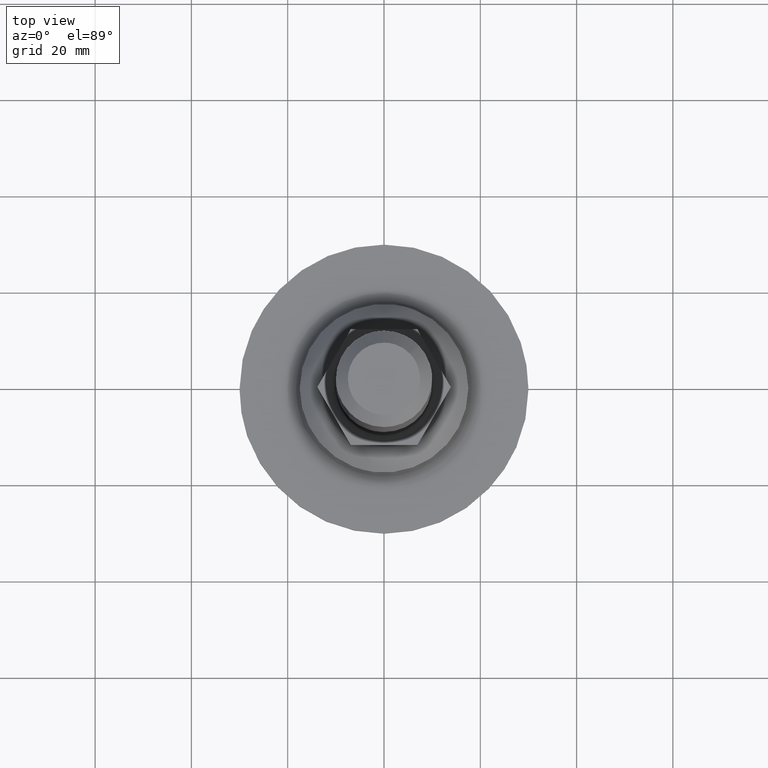
[diagram: clean part render]
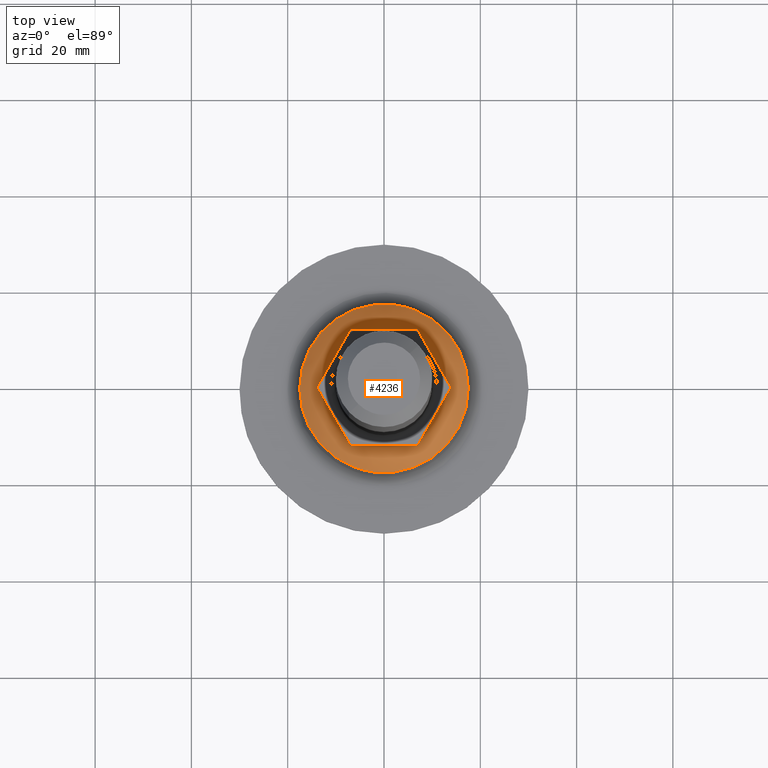
[diagram: same view with one face highlighted and labeled with its STEP entity id]
A machine part, top view. The second image highlights one B-rep face of the part: STEP entity #4236.
In plain terms, the highlighted face is a freeform B-spline surface patch.
Its self-contained STEP definition (entity closure, byte-faithful):
#3820=CARTESIAN_POINT('',(6.442179672005633,16.271088503035049,10.499999999995280));
#3821=VERTEX_POINT('',#3820);
#3829=CARTESIAN_POINT('',(17.500000000000000,0.0,10.500000000000000));
#3830=VERTEX_POINT('',#3829);
#3831=CARTESIAN_POINT('',(6.442179672005633,16.271088503035049,10.499999999995280));
#3832=CARTESIAN_POINT('',(7.403340600920035,15.890662669724080,10.499999999995500));
#3833=CARTESIAN_POINT('',(8.818583929590631,15.179371020373710,10.499999999995790));
#3834=CARTESIAN_POINT('',(10.795339610360010,13.824615804324770,10.499999999996369));
#3835=CARTESIAN_POINT('',(12.356955415463240,12.462107385787601,10.499999999996771));
#3836=CARTESIAN_POINT('',(13.871246741207610,10.745295327909529,10.499999999997460));
#3837=CARTESIAN_POINT('',(15.342359969616160,8.580878732907170,10.499999999997900));
#3838=CARTESIAN_POINT('',(16.582848970730520,5.902173057722604,10.499999999998820));
#3839=CARTESIAN_POINT('',(17.344427515629040,2.883468634726826,10.499999999999231));
#3840=CARTESIAN_POINT('',(17.500045504905131,0.924881292350239,10.499999999999980));
#3841=CARTESIAN_POINT('',(17.500000000000000,0.0,10.500000000000000));
#3842=B_SPLINE_CURVE_WITH_KNOTS('',3,(#3831,#3832,#3833,#3834,#3835,#3836,#3837,#3838,#3839,#3840,#3841),.UNSPECIFIED.,.F.,.U.,(4,1,1,1,1,1,1,1,4),(0.000000038280557,3.101106259952843,4.733264809486622,7.181511941189427,9.303322801199590,11.588342436059460,15.015880778531979,18.117010735558889,20.891666863327490),.UNSPECIFIED.);
#3843=EDGE_CURVE('',#3821,#3830,#3842,.T.);
#3845=CARTESIAN_POINT('',(-6.442179672005638,-16.271088503035049,10.499999999995280));
#3846=VERTEX_POINT('',#3845);
#3847=CARTESIAN_POINT('',(17.500000000000000,0.0,10.500000000000000));
#3848=CARTESIAN_POINT('',(17.500307947142051,-1.375903476028547,10.499999999999879));
#3849=CARTESIAN_POINT('',(17.247405879530401,-3.506131488879144,10.499999999999670));
#3850=CARTESIAN_POINT('',(16.365138271542769,-6.352440386359571,10.499999999999231));
#3851=CARTESIAN_POINT('',(15.139903573041650,-8.972631477154446,10.499999999998860));
#3852=CARTESIAN_POINT('',(13.427281935533751,-11.371061642094229,10.499999999998410));
#3853=CARTESIAN_POINT('',(11.578085927556570,-13.170632252581290,10.499999999997980));
#3854=CARTESIAN_POINT('',(9.685467653455644,-14.644443321121770,10.499999999997661));
#3855=CARTESIAN_POINT('',(7.640315626724403,-15.828002672030690,10.499999999997179));
#3856=CARTESIAN_POINT('',(5.355084969956888,-16.700689824730102,10.499999999996840));
#3857=CARTESIAN_POINT('',(3.245713853019762,-17.240931461996350,10.499999999996490));
#3858=CARTESIAN_POINT('',(1.348143123613566,-17.487035020237830,10.499999999996239));
#3859=CARTESIAN_POINT('',(-1.094822757801169,-17.523398709589490,10.499999999995740));
#3860=CARTESIAN_POINT('',(-3.617174523103111,-17.213843958939119,10.499999999996019));
#3861=CARTESIAN_POINT('',(-5.575601866158744,-16.614230890256970,10.499999999994991));
#3862=CARTESIAN_POINT('',(-6.442179672005638,-16.271088503035049,10.499999999995280));
#3863=B_SPLINE_CURVE_WITH_KNOTS('',3,(#3847,#3848,#3849,#3850,#3851,#3852,#3853,#3854,#3855,#3856,#3857,#3858,#3859,#3860,#3861,#3862),.UNSPECIFIED.,.F.,.U.,(4,1,1,1,1,1,1,1,1,1,1,1,1,4),(0.000000117842383,4.127617327099145,6.391188767581379,8.921043033117655,12.782419899867071,15.179095145841940,16.643762757267631,19.972436276199218,22.236016812229131,23.966974057011299,26.496823121112911,27.961487889510980,31.290219347469019,34.086362508616652),.UNSPECIFIED.);
#3864=EDGE_CURVE('',#3830,#3846,#3863,.T.);
#3911=CARTESIAN_POINT('',(-17.500000000000121,0.0,10.500000000000000));
#3912=VERTEX_POINT('',#3911);
#3913=CARTESIAN_POINT('',(-6.442179672005638,-16.271088503035049,10.499999999995280));
#3914=CARTESIAN_POINT('',(-7.302142531648174,-15.930676719711570,10.499999999995451));
#3915=CARTESIAN_POINT('',(-8.722892922352987,-15.233232756763650,10.499999999995810));
#3916=CARTESIAN_POINT('',(-10.713144654747071,-13.896331371957119,10.499999999996300));
#3917=CARTESIAN_POINT('',(-12.356960617004820,-12.462111873528221,10.499999999996881));
#3918=CARTESIAN_POINT('',(-13.799137938850970,-10.827052910982189,10.499999999997240));
#3919=CARTESIAN_POINT('',(-15.041027867390181,-9.035845109853568,10.499999999998041));
#3920=CARTESIAN_POINT('',(-16.225534574014532,-6.762620480916014,10.499999999998360));
#3921=CARTESIAN_POINT('',(-17.230859880326289,-3.699481103726158,10.499999999999281));
#3922=CARTESIAN_POINT('',(-17.500210962830248,-1.305731210956885,10.499999999999780));
#3923=CARTESIAN_POINT('',(-17.500000000000121,0.0,10.500000000000000));
#3924=B_SPLINE_CURVE_WITH_KNOTS('',3,(#3913,#3914,#3915,#3916,#3917,#3918,#3919,#3920,#3921,#3922,#3923),.UNSPECIFIED.,.F.,.U.,(4,1,1,1,1,1,1,1,4),(0.000000038281140,2.774658324520242,4.733264809486647,7.181511941189328,9.303322801199379,11.261888170898230,13.710152745459700,16.974487690532310,20.891666863327540),.UNSPECIFIED.);
#3925=EDGE_CURVE('',#3846,#3912,#3924,.T.);
#3927=CARTESIAN_POINT('',(-17.500000000000121,0.0,10.500000000000000));
#3928=CARTESIAN_POINT('',(-17.500253706077299,1.287132451636313,10.499999999999879));
#3929=CARTESIAN_POINT('',(-17.234351201041910,3.683712490399447,10.499999999999631));
#3930=CARTESIAN_POINT('',(-16.306781053282069,6.523187715788938,10.499999999999320));
#3931=CARTESIAN_POINT('',(-15.201176844254769,8.752610587256688,10.499999999998820));
#3932=CARTESIAN_POINT('',(-13.742463009946720,10.988049620418320,10.499999999998449));
#3933=CARTESIAN_POINT('',(-11.779804743356690,13.065298604976450,10.499999999998220));
#3934=CARTESIAN_POINT('',(-9.530063628122216,14.735636268801329,10.499999999997341));
#3935=CARTESIAN_POINT('',(-7.239210173931038,16.015404528896379,10.499999999997280));
#3936=CARTESIAN_POINT('',(-4.390926776632012,17.054002342035520,10.499999999996749));
#3937=CARTESIAN_POINT('',(-1.262501837318637,17.544730025683091,10.499999999995710));
#3938=CARTESIAN_POINT('',(1.407720166144801,17.492804544915000,10.499999999996060));
#3939=CARTESIAN_POINT('',(3.913185694674737,17.117383738882761,10.499999999995630));
#3940=CARTESIAN_POINT('',(5.493092980304871,16.646961691801611,10.499999999995250));
#3941=CARTESIAN_POINT('',(6.442179672005633,16.271088503035049,10.499999999995280));
#3942=B_SPLINE_CURVE_WITH_KNOTS('',3,(#3927,#3928,#3929,#3930,#3931,#3932,#3933,#3934,#3935,#3936,#3937,#3938,#3939,#3940,#3941),.UNSPECIFIED.,.F.,.U.,(4,1,1,1,1,1,1,1,1,1,1,1,4),(0.000000117844927,3.861336404624698,7.190092751078598,8.921043033117812,11.317741537305791,15.179095145840680,17.442603335811199,19.706167372723819,23.034913587827951,26.496823121112438,29.159835323066549,31.023956213747891,34.086362508616709),.UNSPECIFIED.);
#3943=EDGE_CURVE('',#3912,#3821,#3942,.T.);
#4126=CARTESIAN_POINT('',(-14.711978558082301,-14.710840725586944,2.671193121033110));
#4127=CARTESIAN_POINT('',(-9.205010876790453,-18.408597912397504,9.053365477405619));
#4128=CARTESIAN_POINT('',(9.205010876792311,-18.408597912397504,9.053365477404009));
#4129=CARTESIAN_POINT('',(14.711978558083036,-14.710840725586941,2.671193121030524));
#4130=CARTESIAN_POINT('',(-18.409306007854749,-9.203941111014007,9.052130226126925));
#4131=CARTESIAN_POINT('',(-12.295050359180880,-12.294099453242760,19.719095173922081));
#4132=CARTESIAN_POINT('',(12.295050359184611,-12.294099453242760,19.719095173919928));
#4133=CARTESIAN_POINT('',(18.409306007856593,-9.203941111014007,9.052130226123690));
#4134=CARTESIAN_POINT('',(-18.409306007854749,9.203931775035256,9.052130226129425));
#4135=CARTESIAN_POINT('',(-12.295050359180880,12.294086982773020,19.719095173925421));
#4136=CARTESIAN_POINT('',(12.295050359184611,12.294086982773020,19.719095173923261));
#4137=CARTESIAN_POINT('',(18.409306007856593,9.203931775035256,9.052130226126190));
#4138=CARTESIAN_POINT('',(-14.711984552367801,14.710831797527113,2.671203466119944));
#4139=CARTESIAN_POINT('',(-9.205015570042834,18.408588625486196,9.053381676867483));
#4140=CARTESIAN_POINT('',(9.205015570044685,18.408588625486196,9.053381676865874));
#4141=CARTESIAN_POINT('',(14.711984552368536,14.710831797527113,2.671203466117356));
#4149=(BOUNDED_SURFACE()B_SPLINE_SURFACE(2,2,((#4126,#4130,#4134,#4138),(#4127,#4131,#4135,#4139),(#4128,#4132,#4136,#4140),(#4129,#4133,#4137,#4141)),.UNSPECIFIED.,.F.,.F.,.U.)B_SPLINE_SURFACE_WITH_KNOTS((3,1,3),(3,1,3),(0.0,21.055722473652999,42.111444947306012),(0.0,21.054094012520551,42.108166668916418),.UNSPECIFIED.)GEOMETRIC_REPRESENTATION_ITEM()RATIONAL_B_SPLINE_SURFACE(((1.671433969352534,1.335742950216175,1.335742950216175,1.671433288339557),(1.335691019136359,1.0,1.0,1.335690338123382),(1.335691019136359,1.0,1.0,1.335690338123382),(1.671433969352534,1.335742950216175,1.335742950216175,1.671433288339557)))REPRESENTATION_ITEM('')SURFACE());
#4150=ORIENTED_EDGE('',*,*,#3925,.F.);
#4151=ORIENTED_EDGE('',*,*,#3864,.F.);
#4152=ORIENTED_EDGE('',*,*,#3843,.F.);
#4153=ORIENTED_EDGE('',*,*,#3943,.F.);
#4154=EDGE_LOOP('',(#4150,#4151,#4152,#4153));
#4155=FACE_OUTER_BOUND('',#4154,.T.);
#4156=CARTESIAN_POINT('',(-6.928203230275360,12.0,14.570158679988200));
#4157=VERTEX_POINT('',#4156);
#4158=CARTESIAN_POINT('',(6.928203230275470,12.0,14.570158679988140));
#4159=VERTEX_POINT('',#4158);
#4160=CARTESIAN_POINT('',(-6.928203230275360,12.0,14.570158679988200));
#4161=CARTESIAN_POINT('',(-5.974302665926844,12.000000000000050,14.981513434112451));
#4162=CARTESIAN_POINT('',(-3.957580790559049,11.999999999999940,15.645228249657650));
#4163=CARTESIAN_POINT('',(-1.152405796536287,12.000000000000030,16.031245960971191));
#4164=CARTESIAN_POINT('',(1.709229793151665,12.0,15.985759709648461));
#4165=CARTESIAN_POINT('',(4.317066182687054,12.000000000000030,15.541988684993310));
#4166=CARTESIAN_POINT('',(6.144627270901140,12.0,14.908005653675380));
#4167=CARTESIAN_POINT('',(6.928203230275470,12.0,14.570158679988140));
#4168=B_SPLINE_CURVE_WITH_KNOTS('',3,(#4160,#4161,#4162,#4163,#4164,#4165,#4166,#4167),.UNSPECIFIED.,.F.,.U.,(4,1,1,1,1,4),(0.000000022260373,3.116440157013884,6.344190845837296,8.458911693881069,11.686664307442840,14.246592451143529),.UNSPECIFIED.);
#4169=EDGE_CURVE('',#4157,#4159,#4168,.T.);
#4170=ORIENTED_EDGE('',*,*,#4169,.T.);
#4171=CARTESIAN_POINT('',(13.856406460551060,-8.673617E-016,14.570158679988101));
#4172=VERTEX_POINT('',#4171);
#4173=CARTESIAN_POINT('',(6.928203230275470,12.0,14.570158679988140));
#4174=CARTESIAN_POINT('',(7.575461857043951,10.878915172799720,15.128678932171050));
#4175=CARTESIAN_POINT('',(8.507660630662238,9.264299534139450,15.676737929144000));
#4176=CARTESIAN_POINT('',(9.853293657819272,6.933594762760799,16.003462492085191));
#4177=CARTESIAN_POINT('',(11.061701143367451,4.840571601544783,16.026661527497801));
#4178=CARTESIAN_POINT('',(12.461467512825971,2.416105130916509,15.595967700119949));
#4179=CARTESIAN_POINT('',(13.430551135519011,0.737603059629212,14.937389180931680));
#4180=CARTESIAN_POINT('',(13.856406460551060,-8.673617E-016,14.570158679988101));
#4181=B_SPLINE_CURVE_WITH_KNOTS('',3,(#4173,#4174,#4175,#4176,#4177,#4178,#4179,#4180),.UNSPECIFIED.,.F.,.U.,(4,1,1,1,1,4),(0.000000022260515,4.229457931854624,5.787680779523107,8.124996414092175,11.464060763035780,14.246592451143790),.UNSPECIFIED.);
#4182=EDGE_CURVE('',#4159,#4172,#4181,.T.);
#4183=ORIENTED_EDGE('',*,*,#4182,.T.);
#4184=CARTESIAN_POINT('',(6.928203230275470,-12.0,14.570158679988181));
#4185=VERTEX_POINT('',#4184);
#4186=CARTESIAN_POINT('',(13.856406460551060,-8.673617E-016,14.570158679988101));
#4187=CARTESIAN_POINT('',(13.294293571281059,-0.973608083805012,15.055012174282769));
#4188=CARTESIAN_POINT('',(12.118942661120229,-3.009375576925756,15.787379709621071));
#4189=CARTESIAN_POINT('',(10.447361219948419,-5.904639562024709,16.096554572389241));
#4190=CARTESIAN_POINT('',(8.686926454706116,-8.953802018834411,15.782225204455660));
#4191=CARTESIAN_POINT('',(7.575469438530236,-10.878902041280799,15.128594687578479));
#4192=CARTESIAN_POINT('',(6.928203230275470,-12.0,14.570158679988181));
#4193=B_SPLINE_CURVE_WITH_KNOTS('',3,(#4186,#4187,#4188,#4189,#4190,#4191,#4192),.UNSPECIFIED.,.F.,.U.,(4,1,1,1,4),(0.000000022257328,3.672949992176656,7.345885699659431,10.017134541548399,14.246592451143799),.UNSPECIFIED.);
#4194=EDGE_CURVE('',#4172,#4185,#4193,.T.);
#4195=ORIENTED_EDGE('',*,*,#4194,.T.);
#4196=CARTESIAN_POINT('',(-6.928203230275470,-12.0,14.570158679988181));
#4197=VERTEX_POINT('',#4196);
#4198=CARTESIAN_POINT('',(6.928203230275470,-12.0,14.570158679988181));
#4199=CARTESIAN_POINT('',(6.076492331510504,-12.000000000000020,14.937379455673170));
#4200=CARTESIAN_POINT('',(4.067848648348435,-11.999999999999950,15.619954177666580));
#4201=CARTESIAN_POINT('',(1.448377716827622,-12.000000000000041,16.005901902151809));
#4202=CARTESIAN_POINT('',(-1.336955598195046,-12.0,16.005856240024990));
#4203=CARTESIAN_POINT('',(-3.957587912257986,-12.0,15.645248327095960));
#4204=CARTESIAN_POINT('',(-5.974299768641528,-12.000000000000011,14.981502659978499));
#4205=CARTESIAN_POINT('',(-6.928203230275470,-12.0,14.570158679988181));
#4206=B_SPLINE_CURVE_WITH_KNOTS('',3,(#4198,#4199,#4200,#4201,#4202,#4203,#4204,#4205),.UNSPECIFIED.,.F.,.U.,(4,1,1,1,1,4),(0.000000022260078,2.782531710368431,6.344190845837394,7.902401627566672,11.130152316390120,14.246592451143650),.UNSPECIFIED.);
#4207=EDGE_CURVE('',#4185,#4197,#4206,.T.);
#4208=ORIENTED_EDGE('',*,*,#4207,.T.);
#4209=CARTESIAN_POINT('',(-13.856406460550939,0.0,14.570158679988200));
#4210=VERTEX_POINT('',#4209);
#4211=CARTESIAN_POINT('',(-6.928203230275470,-12.0,14.570158679988181));
#4212=CARTESIAN_POINT('',(-7.285923943786082,-11.380409549279809,14.878624134198850));
#4213=CARTESIAN_POINT('',(-8.092111243060964,-9.984052186518978,15.449462380217920));
#4214=CARTESIAN_POINT('',(-9.224221073705994,-8.023180440093631,15.894279441274991));
#4215=CARTESIAN_POINT('',(-10.354963738703340,-6.064676694032227,16.038261341265908));
#4216=CARTESIAN_POINT('',(-11.487352349757259,-4.103322085774786,15.922975781546000));
#4217=CARTESIAN_POINT('',(-12.692499891664040,-2.015945312574849,15.449470847792030));
#4218=CARTESIAN_POINT('',(-13.498685631646950,-0.619590650587730,14.878623104521671));
#4219=CARTESIAN_POINT('',(-13.856406460550939,0.0,14.570158679988200));
#4220=B_SPLINE_CURVE_WITH_KNOTS('',3,(#4211,#4212,#4213,#4214,#4215,#4216,#4217,#4218,#4219),.UNSPECIFIED.,.F.,.U.,(4,1,1,1,1,1,4),(0.000000022264663,2.337326730588218,5.119880742080747,6.900706773744824,9.126711731326992,11.909265742819860,14.246592451143719),.UNSPECIFIED.);
#4221=EDGE_CURVE('',#4197,#4210,#4220,.T.);
#4222=ORIENTED_EDGE('',*,*,#4221,.T.);
#4223=CARTESIAN_POINT('',(-13.856406460550939,0.0,14.570158679988200));
#4224=CARTESIAN_POINT('',(-13.192120980077110,1.150576202910903,15.143400401639900));
#4225=CARTESIAN_POINT('',(-12.025326696003200,3.171523184908006,15.821312152041481));
#4226=CARTESIAN_POINT('',(-10.447762393337671,5.903944709331375,16.062547645055091));
#4227=CARTESIAN_POINT('',(-9.279598191534888,7.927264458437283,15.898762501855050));
#4228=CARTESIAN_POINT('',(-8.129758772692355,9.918844752417909,15.462166952719560));
#4229=CARTESIAN_POINT('',(-7.371089752781283,11.232898041031969,14.952116437203969));
#4230=CARTESIAN_POINT('',(-6.928203230275360,12.0,14.570158679988200));
#4231=B_SPLINE_CURVE_WITH_KNOTS('',3,(#4223,#4224,#4225,#4226,#4227,#4228,#4229,#4230),.UNSPECIFIED.,.F.,.U.,(4,1,1,1,1,4),(0.000000022257680,4.340764548591762,7.234572494386979,9.460622945025387,11.352754146295441,14.246592451143790),.UNSPECIFIED.);
#4232=EDGE_CURVE('',#4210,#4157,#4231,.T.);
#4233=ORIENTED_EDGE('',*,*,#4232,.T.);
#4234=EDGE_LOOP('',(#4170,#4183,#4195,#4208,#4222,#4233));
#4235=FACE_BOUND('',#4234,.T.);
#4236=ADVANCED_FACE('',(#4155,#4235),#4149,.T.);